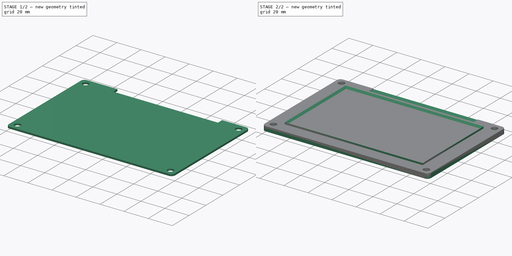
[diagram: build sequence overview — one tinted view per stage of 2, left to right]
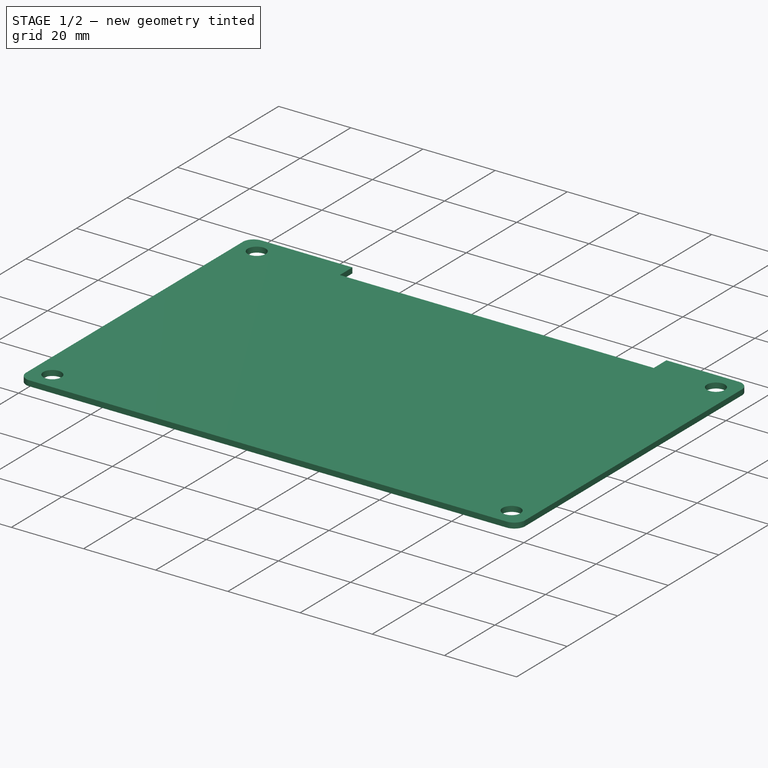
[diagram: stage 1 of 2 — iso view after this stage's code; geometry added in this stage tinted green]
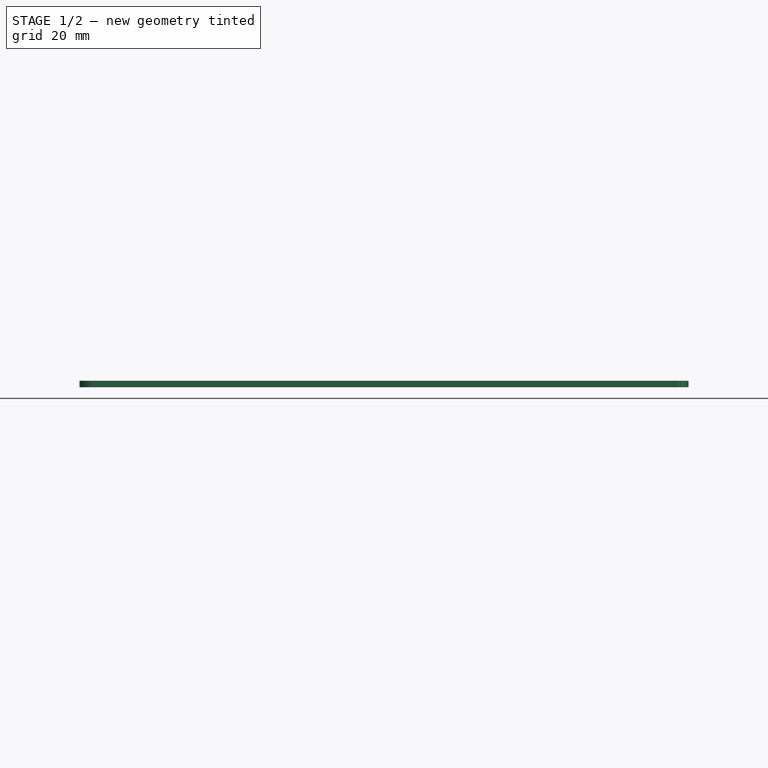
[diagram: stage 1 of 2 — front view after this stage's code; geometry added in this stage tinted green]
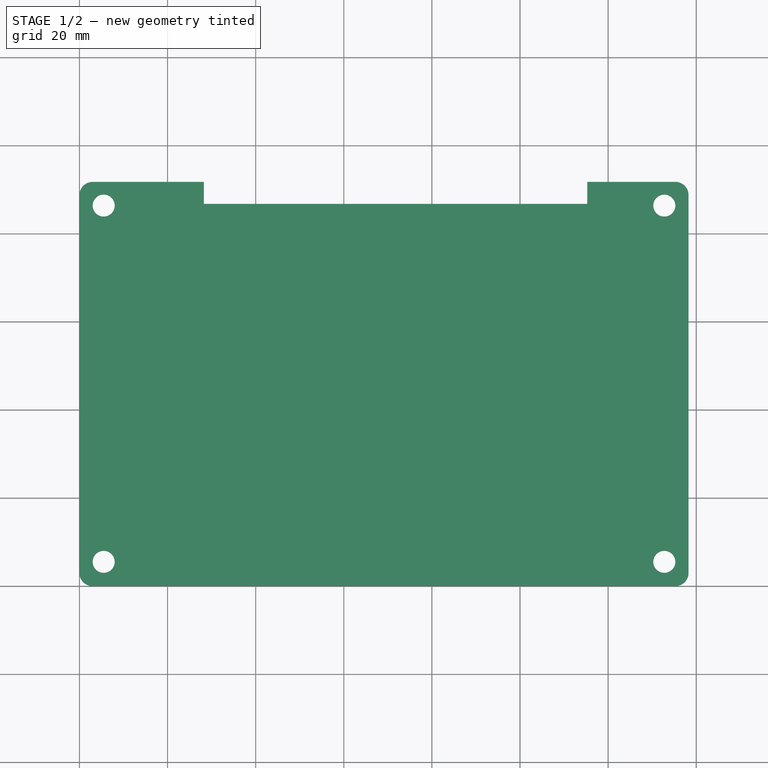
[diagram: stage 1 of 2 — top view after this stage's code; geometry added in this stage tinted green]
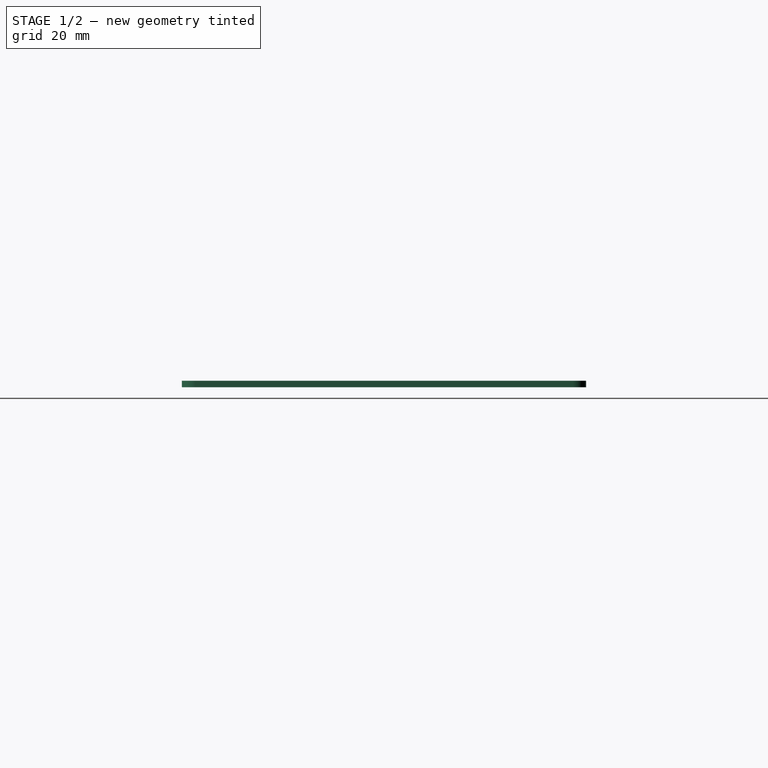
[diagram: stage 1 of 2 — right view after this stage's code; geometry added in this stage tinted green]
FCSTD DOCUMENT  (FreeCAD 0.18R4 (GitTag))
Label: Die_Cut-LCD_Ground_Pad-Syn1
License: CreativeCommons Attribution-ShareAlike
LicenseURL: http://creativecommons.org/licenses/by-sa/4.0/
objects: Drawing::FeatureView×20, Part::FeaturePython×2, PartDesign::Body×2, App::FeaturePython×2, Drawing::FeatureViewPart×2, Sketcher::SketchObject×1, PartDesign::Pad×1, PartDesign::Fillet×1, Drawing::FeaturePage×1
note: 8 computed .brp shape members not serialized (recipe doc carries the construction recipe); baked Part::Feature solids carry a one-line shape summary decoded from their .brp

FEATURE [App::FeaturePython] circularEdgeConstraint01  label="circularEdgeConstraint01__touchscreen_bezel_V0_1_01"  # a2plus constraint (typed FeaturePython)
  Object1 = touchscreen_center_v0_1_01
  Object2 = touchscreen_bezel_V0_1_01
  SubElement1 = Edge48
  SubElement2 = Edge42
  Type = circularEdge
  directionConstraint = 1
  lockRotation = false
  offset = 0
FEATURE [App::FeaturePython] circularEdgeConstraint01_mirror  label="circularEdgeConstraint01__touchscreen_center_v0_1_01"  # a2plus constraint (typed FeaturePython)
  Object1 = touchscreen_center_v0_1_01
  Object2 = touchscreen_bezel_V0_1_01
  SubElement1 = Edge48
  SubElement2 = Edge42
  Type = circularEdge
  directionConstraint = 1
  lockRotation = false
  offset = 0
FEATURE [Sketcher::SketchObject] Sketch
  MapMode = 5
  Support = -> [XY_Plane001]
  sketch-geometry (16):
    g0: LineSegment StartX=0 StartY=0 StartZ=0 EndX=138.25 EndY=0 EndZ=0
    g1: LineSegment StartX=138.25 StartY=0 StartZ=0 EndX=138.25 EndY=91.75 EndZ=0
    g2: LineSegment StartX=138.25 StartY=91.75 StartZ=0 EndX=115.25 EndY=91.75 EndZ=0
    g3: LineSegment StartX=115.25 StartY=91.75 StartZ=0 EndX=115.25 EndY=86.75 EndZ=0
    g4: LineSegment StartX=115.25 StartY=86.75 StartZ=0 EndX=28.25 EndY=86.75 EndZ=0
    g5: LineSegment StartX=28.25 StartY=86.75 StartZ=0 EndX=28.25 EndY=91.75 EndZ=0
    g6: LineSegment StartX=28.25 StartY=91.75 StartZ=0 EndX=0 EndY=91.75 EndZ=0
    g7: LineSegment StartX=0 StartY=91.75 StartZ=0 EndX=0 EndY=0 EndZ=0
    g8: LineSegment [constr] StartX=5.5 StartY=86.375 StartZ=0 EndX=132.75 EndY=86.375 EndZ=0
    g9: LineSegment [constr] StartX=132.75 StartY=86.375 StartZ=0 EndX=132.75 EndY=5.5 EndZ=0
    g10: LineSegment [constr] StartX=132.75 StartY=5.5 StartZ=0 EndX=5.5 EndY=5.5 EndZ=0
    g11: LineSegment [constr] StartX=5.5 StartY=5.5 StartZ=0 EndX=5.5 EndY=86.375 EndZ=0
    g12: Circle CenterX=5.5 CenterY=86.375 CenterZ=0 NormalX=0 NormalY=0 NormalZ=1 AngleXU=0 Radius=2.5
    g13: Circle CenterX=132.75 CenterY=86.375 CenterZ=0 NormalX=0 NormalY=0 NormalZ=1 AngleXU=0 Radius=2.5
    g14: Circle CenterX=132.75 CenterY=5.5 CenterZ=0 NormalX=0 NormalY=0 NormalZ=1 AngleXU=0 Radius=2.5
    g15: Circle CenterX=5.5 CenterY=5.5 CenterZ=0 NormalX=0 NormalY=0 NormalZ=1 AngleXU=0 Radius=2.5
  constraints (43):
    c: Coincident(g0,g1)
    c: Coincident(g1,g2)
    c: Coincident(g2,g3)
    c: Coincident(g3,g4)
    c: Coincident(g4,g5)
    c: Coincident(g5,g6)
    c: Coincident(g6,g7)
    c: Coincident(g0,g7)
    c: Coincident(g0,g-1)
    c: Vertical(g7)
    c: Vertical(g1)
    c: Vertical(g3)
    c: Vertical(g5)
    c: Horizontal(g6)
    c: Horizontal(g4)
    c: Horizontal(g2)
    c: Horizontal(g0)
    c: DistanceX(g0,g0) = 138.25
    c: DistanceY(g1,g1) = 91.75
    c: Equal(g7,g1)
    c: DistanceX(g2,g2) = 23
    c: DistanceY(g3,g3) = 5
    c: DistanceX(g4,g4) = 87
    c: Coincident(g8,g9)
    c: Coincident(g9,g10)
    c: Coincident(g10,g11)
    c: Coincident(g11,g8)
    c: Horizontal(g8)
    c: Horizontal(g10)
    c: Vertical(g9)
    c: Vertical(g11)
    c: DistanceX(g10) = 5.5
    c: DistanceY(g10) = 5.5
    c: DistanceY(g11,g11) = 80.875
    c: DistanceX(g8,g8) = 127.25
    c: Coincident(g10,g15)
    c: Coincident(g9,g14)
    c: Coincident(g8,g13)
    c: Coincident(g8,g12)
    c: Radius(g12) = 2.5
    c: Equal(g12,g13)
    c: Equal(g12,g14)
    c: Equal(g12,g15)
FEATURE [PartDesign::Pad] Pad
  Length = 1.5
  Length2 = 100
  Profile = -> Sketch
  Type = 0
FEATURE [PartDesign::Fillet] Fillet
  Base = -> Pad [Edge20,Edge1,Edge2,Edge5]
  BaseFeature = -> Pad
  Radius = 3
FEATURE [PartDesign::Body] Body001
  Group = -> [Sketch,Pad,Fillet]
  Origin = -> Origin001
  Tip = -> Fillet
FEATURE [Drawing::FeatureViewPart] Ortho  label="Ortho_0_0"
  Direction = (0,0,1)
  HiddenWidth = 0.15
  LineWidth = 0.35
  Rotation = 0
  ShowHiddenLines = false
  ShowSmoothLines = false
  Source = -> Body001
  Tolerance = 0.05
  ViewResult = <g id="Ortho_0_0"\n   transform="rotate(0,55.75,127.375) translate(55.75,127.375) scale(1,1)"\n  >\n<g   fill="none"\n   stroke="rgb(0, 0, 0)"\n   stroke-linecap="butt"\n   stroke-linejoin="miter"\n   stroke-width="0.350000"\n   transform="scale(1,-1)"\n  >\n<path id= "1" d=" M 3 0 L 135.25 0 " />\n<path d="M3 -4.44089e-16 A3 3 0 0 0 -4.44089e-16 3" /><path d="M135.25 -4.44089e-16 A3 3 0 0 1 138.25 3" /><path id= "4" d=" M 0 88.75 L 0 3 " />\n<path id= "5" d=" M 138.25 3 L 138.25 88.75 " />\n<path d="M3 91.75 A3 3 0 0 1 -4.44089e-16 88.75" /><path d="M138.25 88.75 A3 3 0 0 1 135.25 91.75" /><path id= "8" d=" M 28.25 91.75 L 3 91.75 " />\n<path id= "9" d=" M 135.25 91.75 L 115.25 91.75 " />\n<path id= "10" d=" M 28.25 86.75 L 28.25 91.75 " />\n<path id= "11" d=" M 115.25 91.75 L 115.25 86.75 " />\n<path id= "12" d=" M 115.25 86.75 L 28.25 86.75 " />\n<circle cx ="132.75" cy ="86.375" r ="2.5" /><circle cx ="132.75" cy ="5.5" r ="2.5" /><circle cx ="5.5" cy ="86.375" r ="2.5" /><circle cx ="5.5" cy ="5.5" r ="2.5" /></g>\n</g>
  Visible = true
  X = 55.75
  Y = 127.375
FEATURE [Drawing::FeatureViewPart] Ortho001  label="Ortho_1_0"
  Direction = (1,0,0)
  HiddenWidth = 0.15
  LineWidth = 0.35
  Rotation = 180
  ShowHiddenLines = false
  ShowSmoothLines = false
  Source = -> Body001
  Tolerance = 0.05
  ViewResult = <g id="Ortho_1_0"\n   transform="rotate(180,241.25,127.375) translate(241.25,127.375) scale(1,1)"\n  >\n<g   fill="none"\n   stroke="rgb(0, 0, 0)"\n   stroke-linecap="butt"\n   stroke-linejoin="miter"\n   stroke-width="0.350000"\n   transform="scale(1,-1)"\n  >\n<path id= "1" d=" M 0 4.44089e-16 L 1.5 4.44089e-16 " />\n<path d="M0,4.44089e-16 Q0,-0.00943169 0,-0.0188634  Q0,-0.0470398 0,-0.0752163  Q0,-0.121783 0,-0.16835  Q0,-0.232722 0,-0.297093  Q0,-0.37846 0,-0.459827  Q0,-0.557166 0,-0.654506  Q0,-0.766593 0,-0.87868  Q0,-1.00411 0,-1.12953  Q0,-1.26672 0,-1.4039  Q0,-1.55113 0,-1.69835  Q0,-1.85376 0,-2.00916  Q0,-2.1708 0,-2.33244  Q0,-2.66292 0,-3 " /><path id= "3" d=" M 0 -3 L 0 -88.75 " />\n<path d="M0,-88.75 L0,-89.0859  L0,-89.4176  L0,-89.7408  L0,-90.0517  L0,-90.3461  L0,-90.6205  L0,-90.8713  L0,-91.0955  L0,-91.2902  L0,-91.4529  L0,-91.5816  L0,-91.6748  L0,-91.7311  L0,-91.75 " /><path d="M1.5,4.44089e-16 Q1.5,-0.00943169 1.5,-0.0188634  Q1.5,-0.0470398 1.5,-0.0752163  Q1.5,-0.121783 1.5,-0.16835  Q1.5,-0.232722 1.5,-0.297093  Q1.5,-0.37846 1.5,-0.459827  Q1.5,-0.557166 1.5,-0.654506  Q1.5,-0.766593 1.5,-0.87868  Q1.5,-1.00411 1.5,-1.12953  Q1.5,-1.26672 1.5,-1.4039  Q1.5,-1.55113 1.5,-1.69835  Q1.5,-1.85376 1.5,-2.00916  Q1.5,-2.1708 1.5,-2.33244  Q1.5,-2.66292 1.5,-3 " /><path id= "6" d=" M 1.5 -3 L 1.5 -88.75 " />\n<path d="M1.5,-88.75 L1.5,-89.0859  L1.5,-89.4176  L1.5,-89.7408  L1.5,-90.0517  L1.5,-90.3461  L1.5,-90.6205  L1.5,-90.8713  L1.5,-91.0955  L1.5,-91.2902  L1.5,-91.4529  L1.5,-91.5816  L1.5,-91.6748  L1.5,-91.7311  L1.5,-91.75 " /><path id= "8" d=" M 0 -91.75 L 1.5 -91.75 " />\n</g>\n</g>
  Visible = true
  X = 241.25
  Y = 127.375
FEATURE [Drawing::FeatureView] dimStack001
  Rotation = 0
  ViewResult = <g> <line x1="56.750000" y1="127.375000" x2="51.498016" y2="127.375000" style="stroke:rgb(0,0,255);stroke-width:0.25" />\n<line x1="59.249999" y1="121.875000" x2="51.498016" y2="121.875000" style="stroke:rgb(0,0,255);stroke-width:0.25" />\n<line x1="52.498016" y1="127.375000" x2="52.498016" y2="121.875000" style="stroke:rgb(0,0,255);stroke-width:0.25" />\n<polygon points="52.498016,127.375000 53.498016,125.375000 52.498016,125.375000 51.498016,125.375000" style="fill:rgb(0,0,255);stroke:rgb(0,0,255);stroke-width:0" />\n<polygon points="52.498016,121.875000 51.498016,123.875000 52.498016,123.875000 53.498016,123.875000" style="fill:rgb(0,0,255);stroke:rgb(0,0,255);stroke-width:0" />\n<text x="50.498016" y="124.625000" font-family="inherit" font-size="3" fill="rgb(0,0,255)" text-anchor="middle" transform="rotate(-90.000000 50.498016,124.625000)" >5.5 </text> </g> 
  Visible = true
  X = 0
  Y = 0
FEATURE [Drawing::FeatureView] dimStack002
  Rotation = 0
  ViewResult = <g> <line x1="56.750000" y1="127.375000" x2="42.576697" y2="127.375000" style="stroke:rgb(0,0,255);stroke-width:0.25" />\n<line x1="103.999999" y1="40.625000" x2="42.576697" y2="40.625000" style="stroke:rgb(0,0,255);stroke-width:0.25" />\n<line x1="43.576697" y1="127.375000" x2="43.576697" y2="40.625000" style="stroke:rgb(0,0,255);stroke-width:0.25" />\n<polygon points="43.576697,127.375000 44.576697,125.375000 43.576697,125.375000 42.576697,125.375000" style="fill:rgb(0,0,255);stroke:rgb(0,0,255);stroke-width:0" />\n<polygon points="43.576697,40.625000 42.576697,42.625000 43.576697,42.625000 44.576697,42.625000" style="fill:rgb(0,0,255);stroke:rgb(0,0,255);stroke-width:0" />\n<text x="41.576697" y="84.000000" font-family="inherit" font-size="3" fill="rgb(0,0,255)" text-anchor="middle" transform="rotate(-90.000000 41.576697,84.000000)" >86.8 </text> </g> 
  Visible = true
  X = 0
  Y = 0
FEATURE [Drawing::FeatureView] dimStack003
  Rotation = 0
  ViewResult = <g> <line x1="56.750000" y1="127.375000" x2="34.391019" y2="127.375000" style="stroke:rgb(0,0,255);stroke-width:0.25" />\n<line x1="56.750000" y1="35.625000" x2="34.391019" y2="35.625000" style="stroke:rgb(0,0,255);stroke-width:0.25" />\n<line x1="35.391019" y1="127.375000" x2="35.391019" y2="35.625000" style="stroke:rgb(0,0,255);stroke-width:0.25" />\n<polygon points="35.391019,127.375000 36.391019,125.375000 35.391019,125.375000 34.391019,125.375000" style="fill:rgb(0,0,255);stroke:rgb(0,0,255);stroke-width:0" />\n<polygon points="35.391019,35.625000 34.391019,37.625000 35.391019,37.625000 36.391019,37.625000" style="fill:rgb(0,0,255);stroke:rgb(0,0,255);stroke-width:0" />\n<text x="33.391019" y="81.500000" font-family="inherit" font-size="3" fill="rgb(0,0,255)" text-anchor="middle" transform="rotate(-90.000000 33.391019,81.500000)" >2X 91.8 </text> </g> 
  Visible = true
  X = 0
  Y = 0
FEATURE [Drawing::FeatureView] dim002
  Rotation = 0
  ViewResult = <g> \n  <line x1="55.750000" y1="126.375000" x2="55.750000" y2="135.087290" style="stroke:rgb(0,0,255);stroke-width:0.25" />\n<line x1="61.250000" y1="123.875000" x2="61.250000" y2="135.087290" style="stroke:rgb(0,0,255);stroke-width:0.25" />\n<line x1="55.750000" y1="134.087290" x2="61.250000" y2="134.087290" style="stroke:rgb(0,0,255);stroke-width:0.25" /> \n  <polygon points="61.250000,134.087290 59.250000,133.087290 59.250000,134.087290 59.250000,135.087290" style="fill:rgb(0,0,255);stroke:rgb(0,0,255);stroke-width:0" /><polygon points="55.750000,134.087290 57.750000,135.087290 57.750000,134.087290 57.750000,133.087290" style="fill:rgb(0,0,255);stroke:rgb(0,0,255);stroke-width:0" /> \n  <text x="58.500000" y="132.087290" font-family="inherit" font-size="3" fill="rgb(0,0,255)" text-anchor="middle" transform="rotate(0.000000 58.500000,132.087290)" >5.5 </text> </g>
  Visible = true
  X = 0
  Y = 0
FEATURE [Drawing::FeatureView] dim006
  Rotation = 0
  ViewResult = <g> \n  <line x1="55.750000" y1="36.625000" x2="55.750000" y2="16.045471" style="stroke:rgb(0,0,255);stroke-width:0.25" />\n<line x1="194.000000" y1="36.625000" x2="194.000000" y2="16.045471" style="stroke:rgb(0,0,255);stroke-width:0.25" />\n<line x1="55.750000" y1="17.045471" x2="194.000000" y2="17.045471" style="stroke:rgb(0,0,255);stroke-width:0.25" /> \n  <polygon points="194.000000,17.045471 192.000000,16.045471 192.000000,17.045471 192.000000,18.045471" style="fill:rgb(0,0,255);stroke:rgb(0,0,255);stroke-width:0" /><polygon points="55.750000,17.045471 57.750000,18.045471 57.750000,17.045471 57.750000,16.045471" style="fill:rgb(0,0,255);stroke:rgb(0,0,255);stroke-width:0" /> \n  <text x="124.875000" y="15.045471" font-family="inherit" font-size="3" fill="rgb(0,0,255)" text-anchor="middle" transform="rotate(0.000000 124.875000,15.045471)" >138.2 </text> </g>
  Visible = true
  X = 0
  Y = 0
FEATURE [Drawing::FeatureView] dimStack004
  Rotation = 0
  ViewResult = <g> <line x1="239.750000" y1="36.625000" x2="239.750000" y2="29.768984" style="stroke:rgb(0,0,255);stroke-width:0.25" />\n<line x1="241.250000" y1="36.625000" x2="241.250000" y2="29.768984" style="stroke:rgb(0,0,255);stroke-width:0.25" />\n<line x1="239.750000" y1="30.768984" x2="241.250000" y2="30.768984" style="stroke:rgb(0,0,255);stroke-width:0.25" />\n<polygon points="239.750000,30.768984 241.750000,31.768984 241.750000,30.768984 241.750000,29.768984" style="fill:rgb(0,0,255);stroke:rgb(0,0,255);stroke-width:0" />\n<polygon points="241.250000,30.768984 239.250000,29.768984 239.250000,30.768984 239.250000,31.768984" style="fill:rgb(0,0,255);stroke:rgb(0,0,255);stroke-width:0" />\n<text x="240.500000" y="28.768984" font-family="inherit" font-size="3" fill="rgb(0,0,255)" text-anchor="middle"  >1.50</text> </g> 
  Visible = true
  X = 0
  Y = 0
FEATURE [Drawing::FeatureView] dim007
  Rotation = 0
  ViewResult = <g>  <circle cx ="58.750000" cy ="38.625000" r="0.125000" stroke="none" fill="rgb(0,0,255)" /> \n<line x1="44.871434" y1="29.486943" x2="58.750000" y2="38.625000" style="stroke:rgb(0,0,255);stroke-width:0.25" />\n<polygon points="56.244364,36.975215 57.364860,38.910284 57.914788,38.075072 58.464716,37.239860" style="fill:rgb(0,0,255);stroke:rgb(0,0,255);stroke-width:0" />\n<line x1="44.871434" y1="29.486943" x2="34.798255" y2="29.486943" style="stroke:rgb(0,0,255);stroke-width:0.25" />\n<text x="39.834845" y="27.486943" font-family="inherit" font-size="3" fill="rgb(0,0,255)" text-anchor="middle"  >4X R3.0</text> </g>
  Visible = true
  X = 0
  Y = 0
FEATURE [Drawing::FeatureView] dim008
  Rotation = 0
  ViewResult = <g>  <circle cx ="188.500000" cy ="41.000000" r="0.125000" stroke="none" fill="rgb(0,0,255)" /> \n<line x1="204.027665" y1="26.922861" x2="186.647841" y2="42.679139" style="stroke:rgb(0,0,255);stroke-width:0.25" />\n<polygon points="190.352159,39.320861 188.198776,39.923309 188.870432,40.664172 189.542087,41.405036" style="fill:rgb(0,0,255);stroke:rgb(0,0,255);stroke-width:0" />\n<polygon points="186.647841,42.679139 188.801224,42.076691 188.129568,41.335828 187.457913,40.594964" style="fill:rgb(0,0,255);stroke:rgb(0,0,255);stroke-width:0" />\n<line x1="204.027665" y1="26.922861" x2="215.199736" y2="26.922861" style="stroke:rgb(0,0,255);stroke-width:0.25" />\n<text x="209.613701" y="24.922861" font-family="inherit" font-size="3" fill="rgb(0,0,255)" text-anchor="middle"  >4X Ø5.00</text> </g>
  Visible = true
  X = 0
  Y = 0
FEATURE [Drawing::FeatureView] centerLines001
  Rotation = 0
  ViewResult = <g transform="scale(1.000000,1.000000)" stroke="rgb(0,0,255)"  stroke-width="0.150000" > <path d="M 61.250000,41.000000 L 64.250000,41.000000 M 66.250000,41.000000 L 72.250000,41.000000 M 74.250000,41.000000 L 77.250000,41.000000 M 79.250000,41.000000 L 85.250000,41.000000 M 87.250000,41.000000 L 90.250000,41.000000 M 92.250000,41.000000 L 98.250000,41.000000 M 100.250000,41.000000 L 103.250000,41.000000 M 105.250000,41.000000 L 111.250000,41.000000 M 113.250000,41.000000 L 116.250000,41.000000 M 118.250000,41.000000 L 124.250000,41.000000 M 126.250000,41.000000 L 129.250000,41.000000 M 131.250000,41.000000 L 137.250000,41.000000 M 139.250000,41.000000 L 142.250000,41.000000 M 144.250000,41.000000 L 150.250000,41.000000 M 152.250000,41.000000 L 155.250000,41.000000 M 157.250000,41.000000 L 163.250000,41.000000 M 165.250000,41.000000 L 168.250000,41.000000 M 170.250000,41.000000 L 176.250000,41.000000 M 178.250000,41.000000 L 181.250000,41.000000 M 183.250000,41.000000 L 187.177983,41.000000 "/>\n<path d="M 61.250000,41.000000 L 64.250000,41.000000 M 66.250000,41.000000 L 72.250000,41.000000 M 74.250000,41.000000 L 77.250000,41.000000 M 79.250000,41.000000 L 85.250000,41.000000 M 87.250000,41.000000 L 90.250000,41.000000 M 92.250000,41.000000 L 98.250000,41.000000 M 100.250000,41.000000 L 103.250000,41.000000 M 105.250000,41.000000 L 111.250000,41.000000 M 113.250000,41.000000 L 116.250000,41.000000 M 118.250000,41.000000 L 124.250000,41.000000 M 126.250000,41.000000 L 129.250000,41.000000 M 131.250000,41.000000 L 137.250000,41.000000 M 139.250000,41.000000 L 142.250000,41.000000 M 144.250000,41.000000 L 150.250000,41.000000 M 152.250000,41.000000 L 155.250000,41.000000 M 157.250000,41.000000 L 163.250000,41.000000 M 165.250000,41.000000 L 168.250000,41.000000 M 170.250000,41.000000 L 176.250000,41.000000 M 178.250000,41.000000 L 181.250000,41.000000 M 183.250000,41.000000 L 187.177983,41.000000 "/> </g> 
  Visible = true
  X = 0
  Y = 0
FEATURE [Drawing::FeatureView] centerLines002
  Rotation = 0
  ViewResult = <g transform="scale(1.000000,1.000000)" stroke="rgb(0,0,255)"  stroke-width="0.150000" > <path d="M 188.500000,41.000000 L 188.500000,44.000000 M 188.500000,46.000000 L 188.500000,52.000000 M 188.500000,54.000000 L 188.500000,57.000000 M 188.500000,59.000000 L 188.500000,65.000000 M 188.500000,67.000000 L 188.500000,70.000000 M 188.500000,72.000000 L 188.500000,78.000000 M 188.500000,80.000000 L 188.500000,83.000000 M 188.500000,85.000000 L 188.500000,91.000000 M 188.500000,93.000000 L 188.500000,96.000000 M 188.500000,98.000000 L 188.500000,104.000000 M 188.500000,106.000000 L 188.500000,109.000000 M 188.500000,111.000000 L 188.500000,117.000000 M 188.500000,119.000000 L 188.500000,122.000000 "/>\n<path d="M 188.500000,41.000000 L 188.500000,44.000000 M 188.500000,46.000000 L 188.500000,52.000000 M 188.500000,54.000000 L 188.500000,57.000000 M 188.500000,59.000000 L 188.500000,65.000000 M 188.500000,67.000000 L 188.500000,70.000000 M 188.500000,72.000000 L 188.500000,78.000000 M 188.500000,80.000000 L 188.500000,83.000000 M 188.500000,85.000000 L 188.500000,91.000000 M 188.500000,93.000000 L 188.500000,96.000000 M 188.500000,98.000000 L 188.500000,104.000000 M 188.500000,106.000000 L 188.500000,109.000000 M 188.500000,111.000000 L 188.500000,117.000000 M 188.500000,119.000000 L 188.500000,122.000000 "/> </g> 
  Visible = true
  X = 0
  Y = 0
FEATURE [Drawing::FeatureView] centerLines003
  Rotation = 0
  ViewResult = <blob: 2014 chars omitted>
  Visible = true
  X = 0
  Y = 0
FEATURE [Drawing::FeatureView] centerLines004
  Rotation = 0
  ViewResult = <g transform="scale(1.000000,1.000000)" stroke="rgb(0,0,255)"  stroke-width="0.150000" > <path d="M 61.250000,121.875000 L 61.250000,118.875000 M 61.250000,116.875000 L 61.250000,110.875000 M 61.250000,108.875000 L 61.250000,105.875000 M 61.250000,103.875000 L 61.250000,97.875000 M 61.250000,95.875000 L 61.250000,92.875000 M 61.250000,90.875000 L 61.250000,84.875000 M 61.250000,82.875000 L 61.250000,79.875000 M 61.250000,77.875000 L 61.250000,71.875000 M 61.250000,69.875000 L 61.250000,66.875000 M 61.250000,64.875000 L 61.250000,58.875000 M 61.250000,56.875000 L 61.250000,53.875000 M 61.250000,51.875000 L 61.250000,45.875000 M 61.250000,43.875000 L 61.250000,40.875000 "/>\n<path d="M 61.250000,121.875000 L 61.250000,118.875000 M 61.250000,116.875000 L 61.250000,110.875000 M 61.250000,108.875000 L 61.250000,105.875000 M 61.250000,103.875000 L 61.250000,97.875000 M 61.250000,95.875000 L 61.250000,92.875000 M 61.250000,90.875000 L 61.250000,84.875000 M 61.250000,82.875000 L 61.250000,79.875000 M 61.250000,77.875000 L 61.250000,71.875000 M 61.250000,69.875000 L 61.250000,66.875000 M 61.250000,64.875000 L 61.250000,58.875000 M 61.250000,56.875000 L 61.250000,53.875000 M 61.250000,51.875000 L 61.250000,45.875000 M 61.250000,43.875000 L 61.250000,40.875000 "/> </g> 
  Visible = true
  X = 0
  Y = 0
FEATURE [Drawing::FeatureView] dimText001
  Rotation = 0
  ViewResult = <g> <text x="10.549366" y="147.691121" font-family="inherit" font-size="3" fill="rgb(0,0,0)" text-anchor="inherit" transform="rotate(0.000000 10.549366,147.691121)" >Notes</text> </g>
  Visible = true
  X = 0
  Y = 0
FEATURE [Drawing::FeatureView] dimText002
  Rotation = 0
  ViewResult = <g> <text x="10.549366" y="151.383399" font-family="inherit" font-size="3" fill="rgb(0,0,0)" text-anchor="inherit" transform="rotate(0.000000 10.549366,151.383399)" >1. Parts must be RoHS compliant</text> </g>
  Visible = true
  X = 0
  Y = 0
FEATURE [Drawing::FeatureView] dimText003
  Rotation = 0
  ViewResult = <g> <text x="10.549366" y="155.603146" font-family="inherit" font-size="3" fill="rgb(0,0,0)" text-anchor="inherit" transform="rotate(0.000000 10.549366,155.603146)" >2. Parts must be clean, free of debris</text> </g>
  Visible = true
  X = 0
  Y = 0
FEATURE [Drawing::FeatureView] dimText004
  Rotation = 0
  ViewResult = <g> <text x="10.549366" y="159.822892" font-family="inherit" font-size="3" fill="rgb(0,0,0)" text-anchor="inherit"  >3. Material: 1.5mm conductive foam</text> </g>
  Visible = true
  X = 0
  Y = 0
FEATURE [Drawing::FeatureView] dim001
  Rotation = 0
  ViewResult = <g> \n  <line x1="61.250000" y1="123.875000" x2="61.250000" y2="136.842797" style="stroke:rgb(0,0,255);stroke-width:0.25" />\n<line x1="188.500000" y1="123.875000" x2="188.500000" y2="136.842797" style="stroke:rgb(0,0,255);stroke-width:0.25" />\n<line x1="61.250000" y1="135.842797" x2="188.500000" y2="135.842797" style="stroke:rgb(0,0,255);stroke-width:0.25" /> \n  <polygon points="188.500000,135.842797 186.500000,134.842797 186.500000,135.842797 186.500000,136.842797" style="fill:rgb(0,0,255);stroke:rgb(0,0,255);stroke-width:0" /><polygon points="61.250000,135.842797 63.250000,136.842797 63.250000,135.842797 63.250000,134.842797" style="fill:rgb(0,0,255);stroke:rgb(0,0,255);stroke-width:0" /> \n  <text x="124.875000" y="133.842797" font-family="inherit" font-size="3" fill="rgb(0,0,255)" text-anchor="middle" transform="rotate(0.000000 124.875000,133.842797)" >127.25 </text> </g>
  Visible = true
  X = 0
  Y = 0
FEATURE [Drawing::FeatureView] dim003
  Rotation = 0
  ViewResult = <g> \n  <line x1="190.500000" y1="121.875000" x2="202.643764" y2="121.875000" style="stroke:rgb(0,0,255);stroke-width:0.25" />\n<line x1="190.500000" y1="41.000000" x2="202.643764" y2="41.000000" style="stroke:rgb(0,0,255);stroke-width:0.25" />\n<line x1="201.643764" y1="121.875000" x2="201.643764" y2="41.000000" style="stroke:rgb(0,0,255);stroke-width:0.25" /> \n  <polygon points="201.643764,41.000000 200.643764,43.000000 201.643764,43.000000 202.643764,43.000000" style="fill:rgb(0,0,255);stroke:rgb(0,0,255);stroke-width:0" /><polygon points="201.643764,121.875000 202.643764,119.875000 201.643764,119.875000 200.643764,119.875000" style="fill:rgb(0,0,255);stroke:rgb(0,0,255);stroke-width:0" /> \n  <text x="199.643764" y="81.437500" font-family="inherit" font-size="3" fill="rgb(0,0,255)" text-anchor="middle" transform="rotate(-90.000000 199.643764,81.437500)" >80.88 </text> </g>
  Visible = true
  X = 0
  Y = 0
FEATURE [Drawing::FeatureView] dim004
  Rotation = 0
  ViewResult = <g> \n  <line x1="55.750000" y1="36.625000" x2="55.750000" y2="27.771856" style="stroke:rgb(0,0,255);stroke-width:0.25" />\n<line x1="84.000000" y1="33.625000" x2="84.000000" y2="27.771856" style="stroke:rgb(0,0,255);stroke-width:0.25" />\n<line x1="55.750000" y1="28.771856" x2="84.000000" y2="28.771856" style="stroke:rgb(0,0,255);stroke-width:0.25" /> \n  <polygon points="84.000000,28.771856 82.000000,27.771856 82.000000,28.771856 82.000000,29.771856" style="fill:rgb(0,0,255);stroke:rgb(0,0,255);stroke-width:0" /><polygon points="55.750000,28.771856 57.750000,29.771856 57.750000,28.771856 57.750000,27.771856" style="fill:rgb(0,0,255);stroke:rgb(0,0,255);stroke-width:0" /> \n  <text x="69.875000" y="26.771856" font-family="inherit" font-size="3" fill="rgb(0,0,255)" text-anchor="middle" transform="rotate(0.000000 69.875000,26.771856)" >28.2 </text> </g>
  Visible = true
  X = 0
  Y = 0
FEATURE [Drawing::FeatureView] dim005
  Rotation = 0
  ViewResult = <g> \n  <line x1="55.750000" y1="36.625000" x2="55.750000" y2="21.819058" style="stroke:rgb(0,0,255);stroke-width:0.25" />\n<line x1="171.000000" y1="33.625000" x2="171.000000" y2="21.819058" style="stroke:rgb(0,0,255);stroke-width:0.25" />\n<line x1="55.750000" y1="22.819058" x2="171.000000" y2="22.819058" style="stroke:rgb(0,0,255);stroke-width:0.25" /> \n  <polygon points="171.000000,22.819058 169.000000,21.819058 169.000000,22.819058 169.000000,23.819058" style="fill:rgb(0,0,255);stroke:rgb(0,0,255);stroke-width:0" /><polygon points="55.750000,22.819058 57.750000,23.819058 57.750000,22.819058 57.750000,21.819058" style="fill:rgb(0,0,255);stroke:rgb(0,0,255);stroke-width:0" /> \n  <text x="113.375000" y="20.819058" font-family="inherit" font-size="3" fill="rgb(0,0,255)" text-anchor="middle" transform="rotate(0.000000 113.375000,20.819058)" >115.2 </text> </g>
  Visible = true
  X = 0
  Y = 0
FEATURE [Drawing::FeaturePage] Page
  EditableTexts = West | 01/14/2020 | CHECKED | XX/XX/XXXX | Die Cut, LCD Ground Pad, Syn1 | 100069 | Conductive Foam | IR | 1 OF 1
  Group = -> [Ortho,Ortho001,dimStack001,dimStack002,dimStack003,dim002,dim006,dimStack004,dim007,dim008,centerLines001,centerLines002,centerLines003,centerLines004,dimText001,dimText002,dimText003,dimText004,dim001,dim003,dim004,dim005]
  Template = <userpath>/Desktop/drawing templates/A4_Page1_attribution.svg
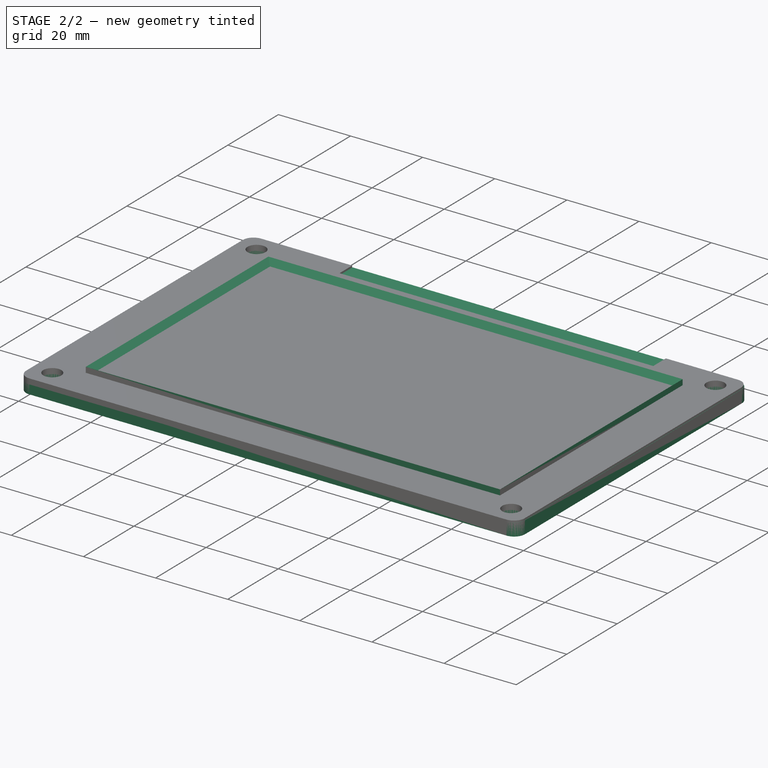
[diagram: stage 2 of 2 — iso view after this stage's code; geometry added in this stage tinted green]
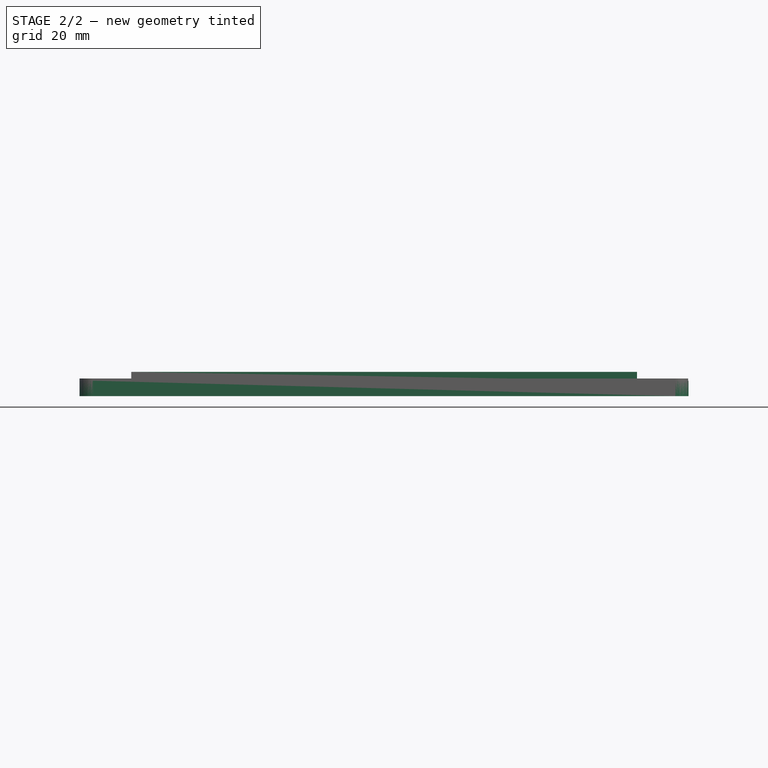
[diagram: stage 2 of 2 — front view after this stage's code; geometry added in this stage tinted green]
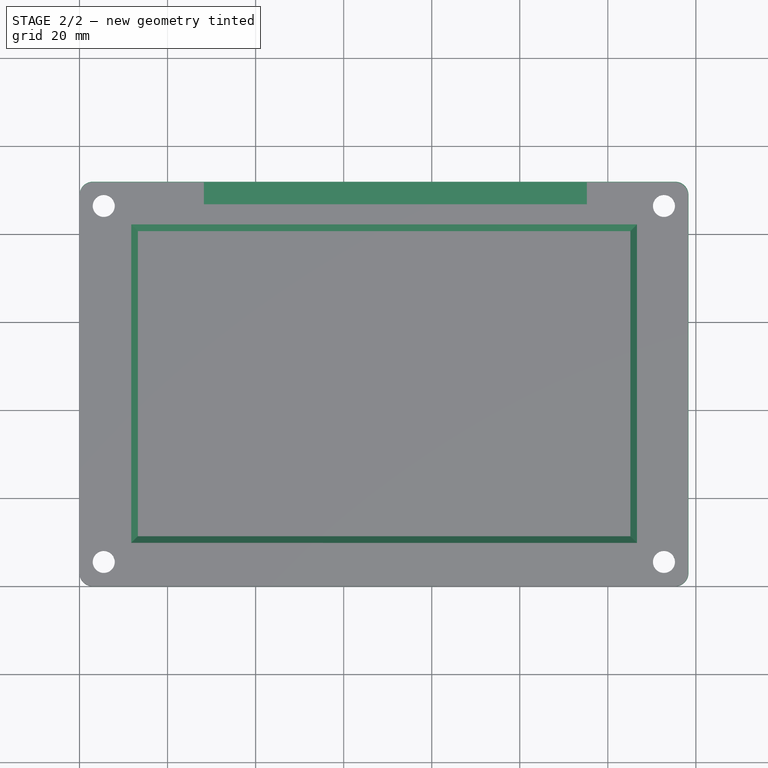
[diagram: stage 2 of 2 — top view after this stage's code; geometry added in this stage tinted green]
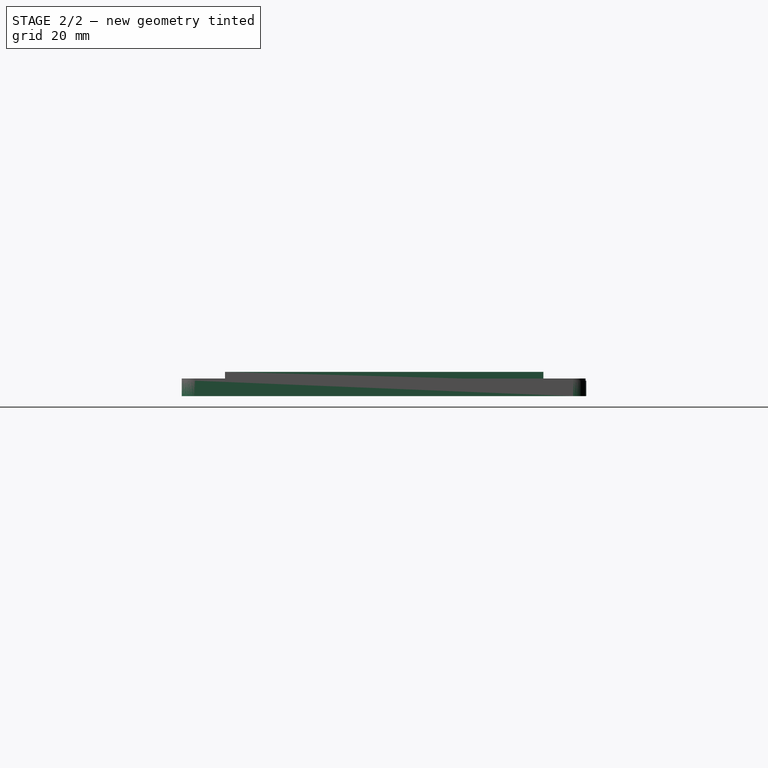
[diagram: stage 2 of 2 — right view after this stage's code; geometry added in this stage tinted green]
FEATURE [Part::FeaturePython] touchscreen_bezel_V0_1_01  # a2plus imported part (geometry in sourceFile) (typed FeaturePython)
  fixedPosition = true
  sourceFile = <userpath>/Projects/taz-quiver/Production_parts/Printed_parts/Control_box/LCD/touchscreen_bezel_V0.1.fcstd
  timeLastImport = 0
  updateColors = true
FEATURE [PartDesign::Body] Body
  Origin = -> Origin
FEATURE [Part::FeaturePython] touchscreen_center_v0_1_01  # a2plus imported part (geometry in sourceFile) (typed FeaturePython)
  Placement = pos=(0,0,-2.5) rot=(0,0,1;0rad)
  fixedPosition = false
  sourceFile = <userpath>/Projects/taz-quiver/Production_parts/Printed_parts/LCD/touchscreen_center_v0.1.fcstd
  timeLastImport = 1.53927e+09
  updateColors = true
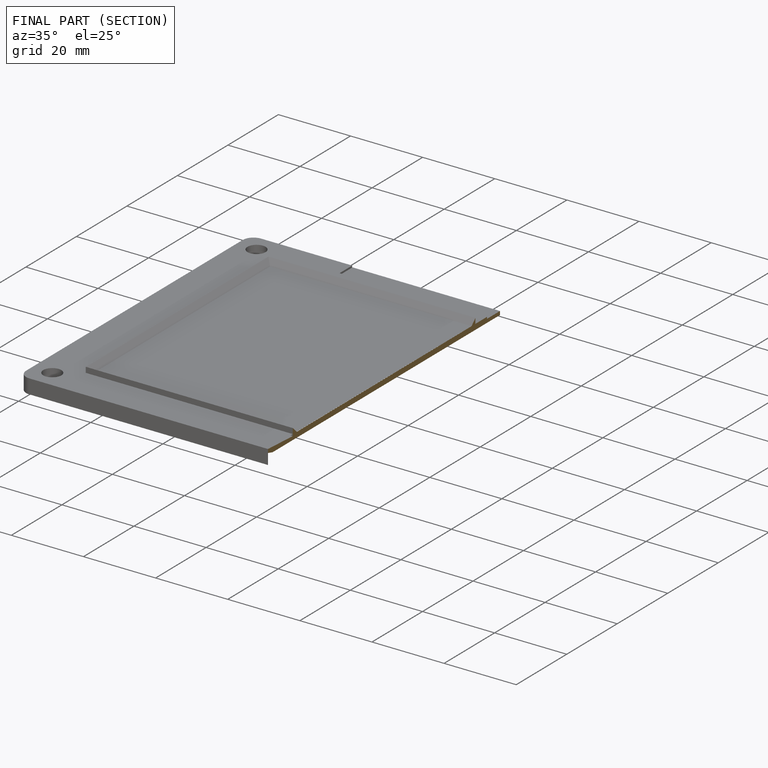
[diagram: finished part — half-section view (interior)]
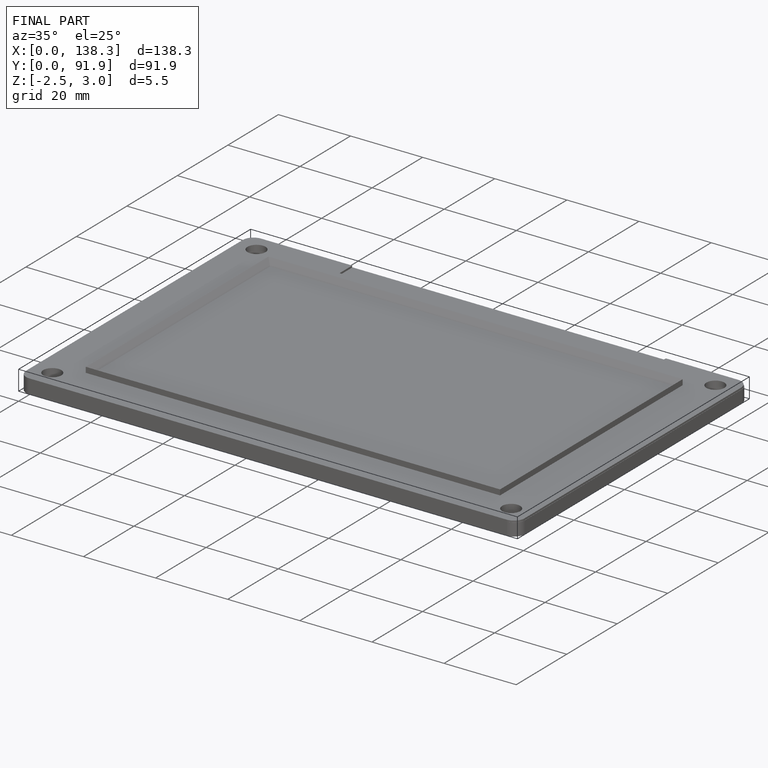
[diagram: finished part — iso view with bounding-box wireframe]
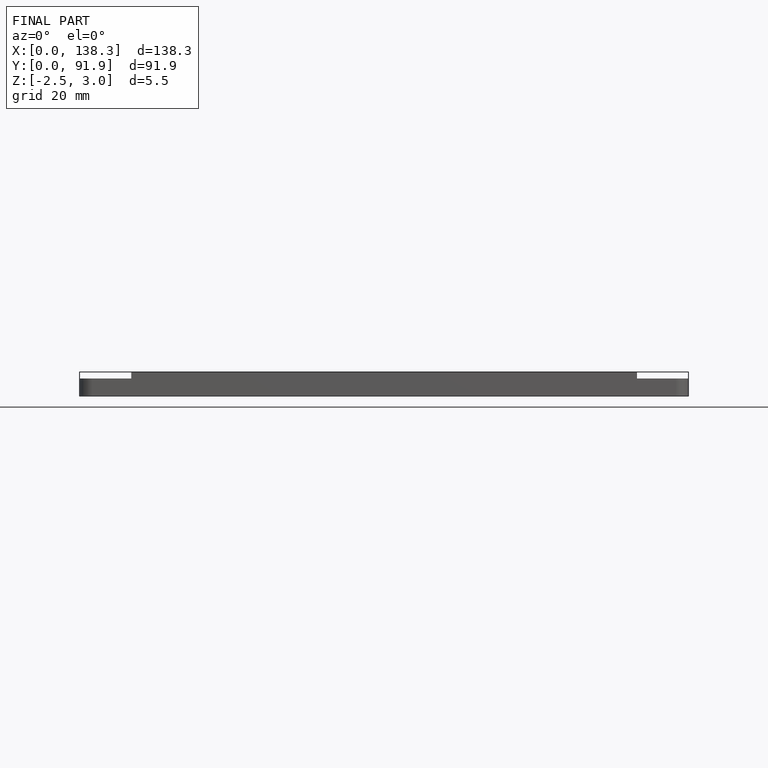
[diagram: finished part — front view with bounding-box wireframe]
